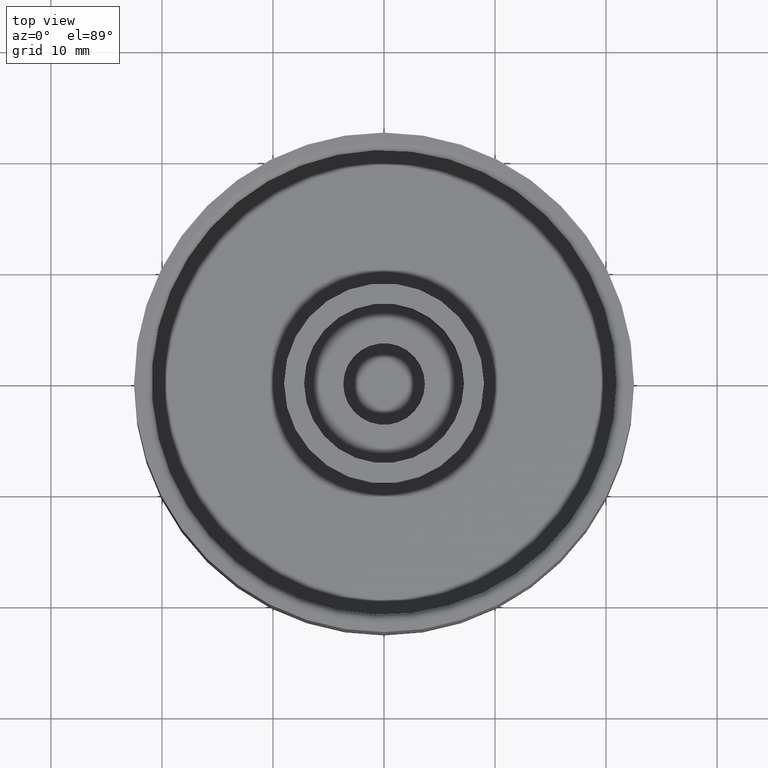
[diagram: clean part render]
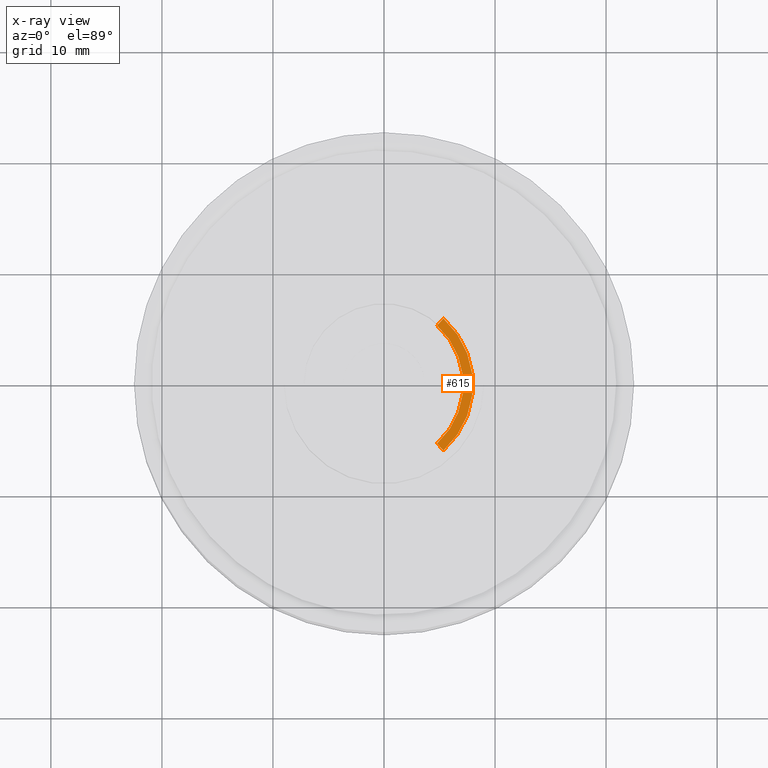
[diagram: x-ray — body ghosted, one internal face saturated and labeled with its STEP entity id]
A machine part, top view, then the same camera in x-ray: the body is ghosted and one INTERNAL B-rep face — a face not visible from any outside direction — is saturated and labeled: STEP entity #615.
In plain terms, the highlighted planar face has unit normal (0, 0, -1).
Its self-contained STEP definition (entity closure, byte-faithful):
#85 = PLANE ( 'NONE',  #196 ) ;
#87 = VECTOR ( 'NONE', #150, 39.37007874015748854 ) ;
#101 = DIRECTION ( 'NONE',  ( -1.000000000000000000, 1.776356839400250465E-15, 0.000000000000000000 ) ) ;
#108 = DIRECTION ( 'NONE',  ( -0.000000000000000000, -0.000000000000000000, 1.000000000000000000 ) ) ;
#150 = DIRECTION ( 'NONE',  ( -0.6691306063588529085, 0.7431448254773989071, 0.000000000000000000 ) ) ;
#151 = AXIS2_PLACEMENT_3D ( 'NONE', #770, #108, #101 ) ;
#164 = DIRECTION ( 'NONE',  ( -1.000000000000000000, 0.000000000000000000, -0.000000000000000000 ) ) ;
#196 = AXIS2_PLACEMENT_3D ( 'NONE', #669, #816, #164 ) ;
#206 = DIRECTION ( 'NONE',  ( 0.6691306063588543518, 0.7431448254773976858, 0.000000000000000000 ) ) ;
#213 = CIRCLE ( 'NONE', #151, 0.3149606299212598381 ) ;
#254 = ORIENTED_EDGE ( 'NONE', *, *, #569, .T. ) ;
#313 = CARTESIAN_POINT ( 'NONE',  ( 0.2299807162800313887, -0.2554194616699875242, 0.2199803149606299191 ) ) ;
#324 = CIRCLE ( 'NONE', #605, 0.2812007874015748921 ) ;
#347 = CARTESIAN_POINT ( 'NONE',  ( 0.2107497972783793083, 0.2340613623550859557, 0.2199803149606299191 ) ) ;
#422 = VERTEX_POINT ( 'NONE', #473 ) ;
#442 = VECTOR ( 'NONE', #206, 39.37007874015748143 ) ;
#473 = CARTESIAN_POINT ( 'NONE',  ( 0.1881600533826030541, 0.2089729100776502313, 0.2199803149606299191 ) ) ;
#525 = VERTEX_POINT ( 'NONE', #929 ) ;
#548 = CARTESIAN_POINT ( 'NONE',  ( 0.1881600533826031096, -0.2089729100776501480, 0.2199803149606299191 ) ) ;
#562 = DIRECTION ( 'NONE',  ( -1.000000000000000000, 0.000000000000000000, 0.000000000000000000 ) ) ;
#569 = EDGE_CURVE ( 'NONE', #525, #688, #822, .T. ) ;
#591 = EDGE_LOOP ( 'NONE', ( #740, #254, #793, #715 ) ) ;
#605 = AXIS2_PLACEMENT_3D ( 'NONE', #862, #632, #562 ) ;
#615 = ADVANCED_FACE ( 'NONE', ( #737 ), #85, .T. ) ;
#632 = DIRECTION ( 'NONE',  ( -0.000000000000000000, -0.000000000000000000, 1.000000000000000000 ) ) ;
#635 = EDGE_CURVE ( 'NONE', #525, #834, #213, .T. ) ;
#669 = CARTESIAN_POINT ( 'NONE',  ( 0.000000000000000000, 0.000000000000000000, 0.2199803149606299191 ) ) ;
#688 = VERTEX_POINT ( 'NONE', #548 ) ;
#701 = LINE ( 'NONE', #922, #442 ) ;
#715 = ORIENTED_EDGE ( 'NONE', *, *, #828, .T. ) ;
#737 = FACE_OUTER_BOUND ( 'NONE', #591, .T. ) ;
#740 = ORIENTED_EDGE ( 'NONE', *, *, #635, .F. ) ;
#770 = CARTESIAN_POINT ( 'NONE',  ( 0.000000000000000000, 0.000000000000000000, 0.2199803149606299191 ) ) ;
#775 = EDGE_CURVE ( 'NONE', #688, #422, #324, .T. ) ;
#793 = ORIENTED_EDGE ( 'NONE', *, *, #775, .T. ) ;
#816 = DIRECTION ( 'NONE',  ( 0.000000000000000000, 0.000000000000000000, -1.000000000000000000 ) ) ;
#822 = LINE ( 'NONE', #313, #87 ) ;
#828 = EDGE_CURVE ( 'NONE', #422, #834, #701, .T. ) ;
#834 = VERTEX_POINT ( 'NONE', #347 ) ;
#862 = CARTESIAN_POINT ( 'NONE',  ( 0.000000000000000000, 0.000000000000000000, 0.2199803149606299191 ) ) ;
#922 = CARTESIAN_POINT ( 'NONE',  ( 0.1881600533826030541, 0.2089729100776502313, 0.2199803149606299191 ) ) ;
#929 = CARTESIAN_POINT ( 'NONE',  ( 0.2107497972783793083, -0.2340613623550859002, 0.2199803149606299191 ) ) ;